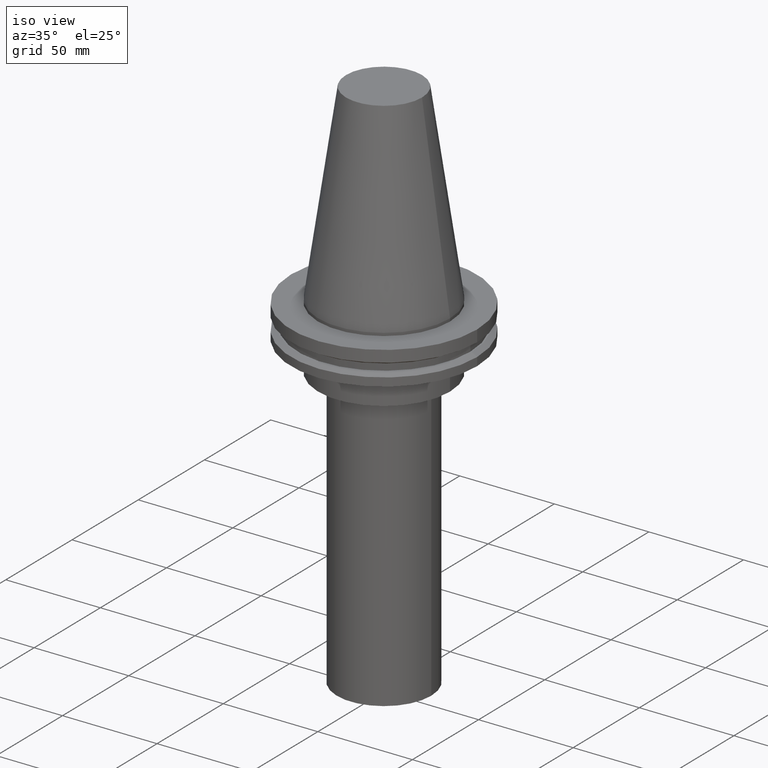
[diagram: clean part render]
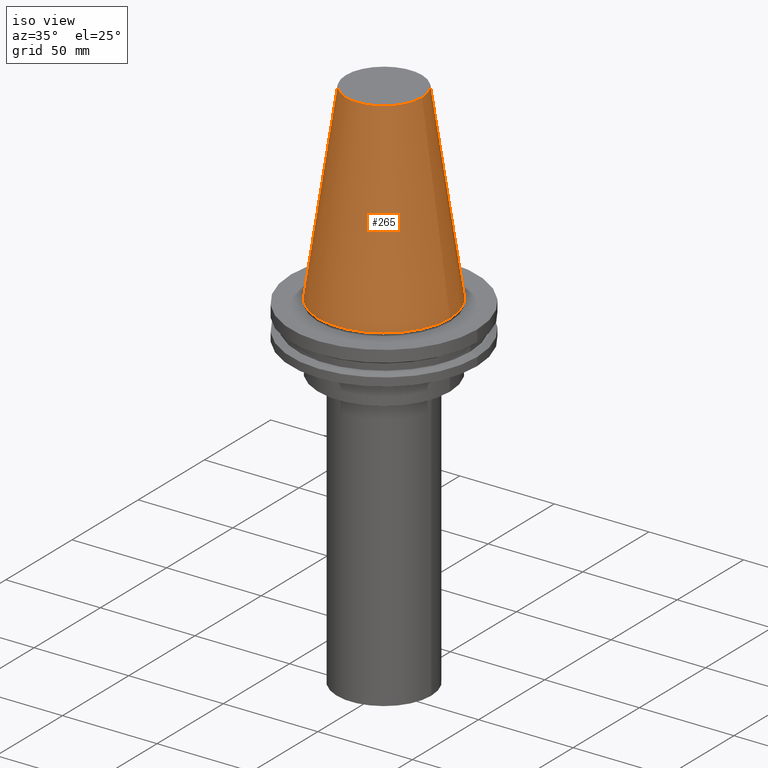
[diagram: same view with one face highlighted and labeled with its STEP entity id]
A machine part, iso view. The second image highlights one B-rep face of the part: STEP entity #265.
In plain terms, the highlighted conical surface has half-angle 8.297 deg.
Its self-contained STEP definition (entity closure, byte-faithful):
#62 = AXIS2_PLACEMENT_3D ( 'NONE', #261, #142, #321 ) ;
#64 = ORIENTED_EDGE ( 'NONE', *, *, #183, .F. ) ;
#66 = CARTESIAN_POINT ( 'NONE',  ( 20.10819343178871321, 0.000000000000000000, 101.5999999999999801 ) ) ;
#73 = EDGE_CURVE ( 'NONE', #296, #296, #189, .T. ) ;
#80 = DIRECTION ( 'NONE',  ( 1.000000000000000000, 0.000000000000000000, 0.000000000000000000 ) ) ;
#97 = EDGE_LOOP ( 'NONE', ( #219 ) ) ;
#108 = VERTEX_POINT ( 'NONE', #66 ) ;
#142 = DIRECTION ( 'NONE',  ( -0.000000000000000000, -0.000000000000000000, 1.000000000000000000 ) ) ;
#151 = CARTESIAN_POINT ( 'NONE',  ( 34.92499999999999005, 0.000000000000000000, 0.000000000000000000 ) ) ;
#166 = AXIS2_PLACEMENT_3D ( 'NONE', #233, #231, #292 ) ;
#183 = EDGE_CURVE ( 'NONE', #108, #108, #299, .T. ) ;
#189 = CIRCLE ( 'NONE', #62, 34.92499999999999005 ) ;
#218 = EDGE_LOOP ( 'NONE', ( #64 ) ) ;
#219 = ORIENTED_EDGE ( 'NONE', *, *, #73, .T. ) ;
#231 = DIRECTION ( 'NONE',  ( 0.000000000000000000, 0.000000000000000000, -1.000000000000000000 ) ) ;
#233 = CARTESIAN_POINT ( 'NONE',  ( 0.000000000000000000, 0.000000000000000000, 0.000000000000000000 ) ) ;
#234 = CONICAL_SURFACE ( 'NONE', #166, 34.92499999999999005, 0.1448138465474119452 ) ;
#258 = FACE_BOUND ( 'NONE', #218, .T. ) ;
#261 = CARTESIAN_POINT ( 'NONE',  ( 0.000000000000000000, 0.000000000000000000, 0.000000000000000000 ) ) ;
#265 = ADVANCED_FACE ( 'NONE', ( #258, #389 ), #234, .T. ) ;
#292 = DIRECTION ( 'NONE',  ( -1.000000000000000000, 0.000000000000000000, 0.000000000000000000 ) ) ;
#296 = VERTEX_POINT ( 'NONE', #151 ) ;
#299 = CIRCLE ( 'NONE', #392, 20.10819343178871321 ) ;
#321 = DIRECTION ( 'NONE',  ( 1.000000000000000000, 0.000000000000000000, 0.000000000000000000 ) ) ;
#323 = CARTESIAN_POINT ( 'NONE',  ( 0.000000000000000000, 0.000000000000000000, 101.5999999999999801 ) ) ;
#376 = DIRECTION ( 'NONE',  ( -0.000000000000000000, -0.000000000000000000, 1.000000000000000000 ) ) ;
#389 = FACE_OUTER_BOUND ( 'NONE', #97, .T. ) ;
#392 = AXIS2_PLACEMENT_3D ( 'NONE', #323, #376, #80 ) ;